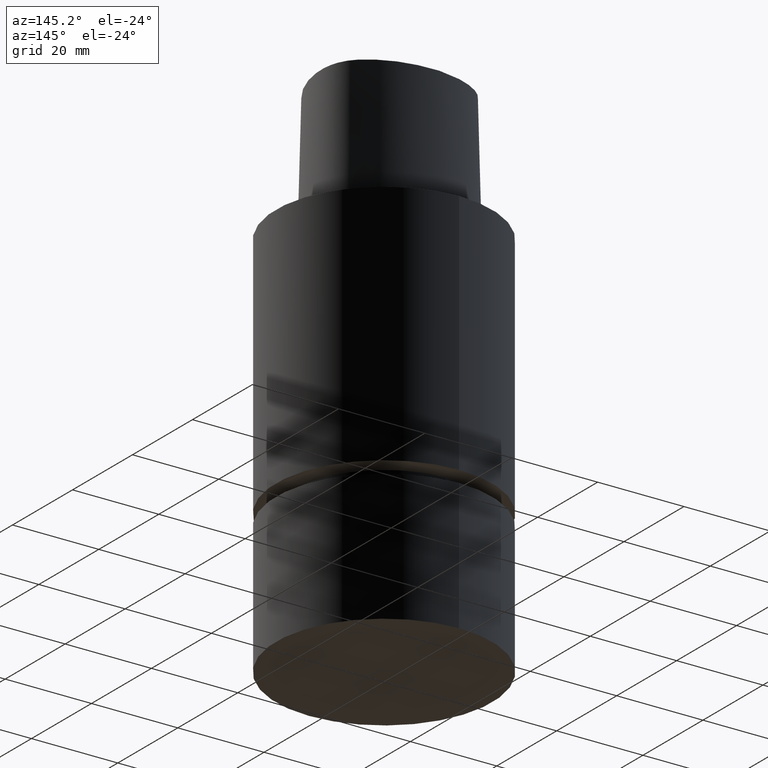
[diagram: clean part render]
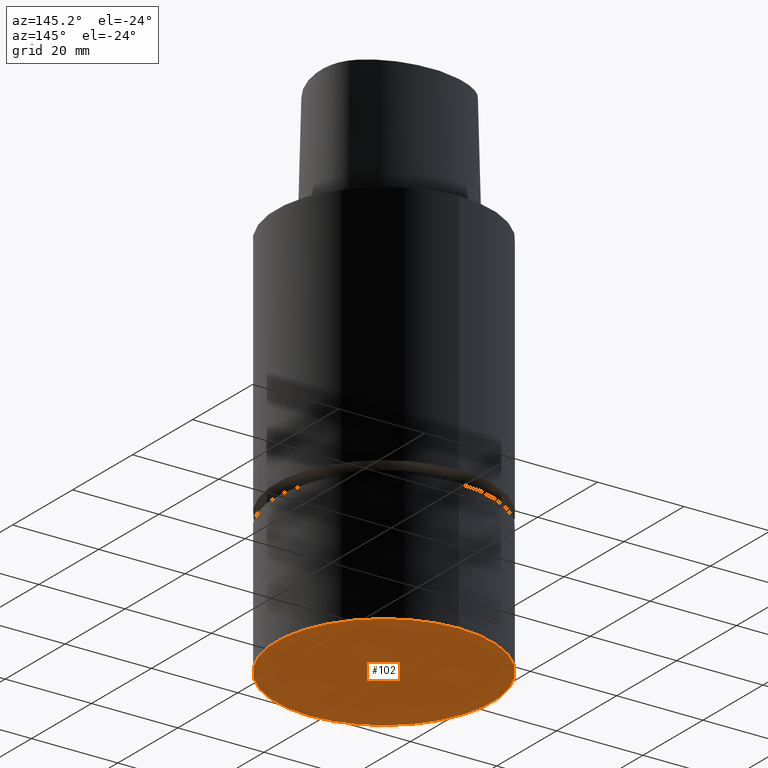
[diagram: same view with one face highlighted and labeled with its STEP entity id]
A machine part, auxiliary view. The second image highlights one B-rep face of the part: STEP entity #102.
In plain terms, the highlighted planar face has unit normal (0, 0, -1).
Its self-contained STEP definition (entity closure, byte-faithful):
#102=ADVANCED_FACE('Unnamed[1]',(#209),#210,.T.);
#124=EDGE_CURVE('Unnamed[1]',#242,#242,#243,.T.);
#209=FACE_OUTER_BOUND('',#387,.T.);
#210=PLANE('',#388);
#242=VERTEX_POINT('',#524);
#243=CIRCLE('',#525,25.0);
#387=EDGE_LOOP('',(#973));
#388=AXIS2_PLACEMENT_3D('',#974,#975,#976);
#524=CARTESIAN_POINT('',(5.51091059616309E-015,25.0,-90.0));
#525=AXIS2_PLACEMENT_3D('',#1009,#1010,#1011);
#973=ORIENTED_EDGE('',*,*,#124,.T.);
#974=CARTESIAN_POINT('',(5.51091059616309E-015,12.5,-90.0));
#975=DIRECTION('',(6.12323399573677E-017,1.22464679914735E-016,-1.0));
#976=DIRECTION('',(-1.23259516440783E-032,1.0,1.22464679914735E-016));
#1009=CARTESIAN_POINT('',(5.51091059616309E-015,1.10218211923262E-014,-90.0));
#1010=DIRECTION('',(6.12323399573677E-017,1.22464679914735E-016,-1.0));
#1011=DIRECTION('',(-1.23259516440783E-032,1.0,1.22464679914735E-016));